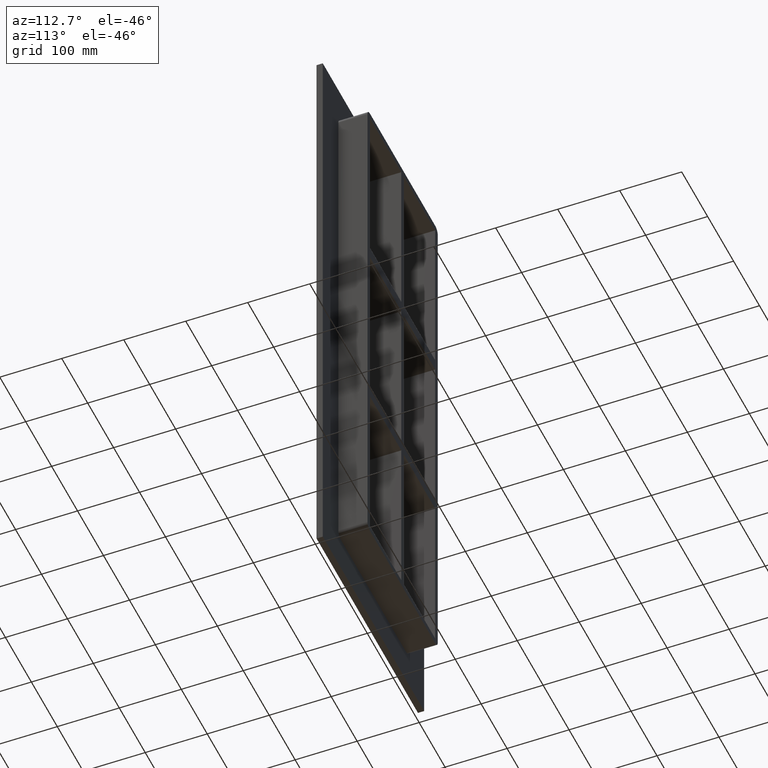
[diagram: clean part render]
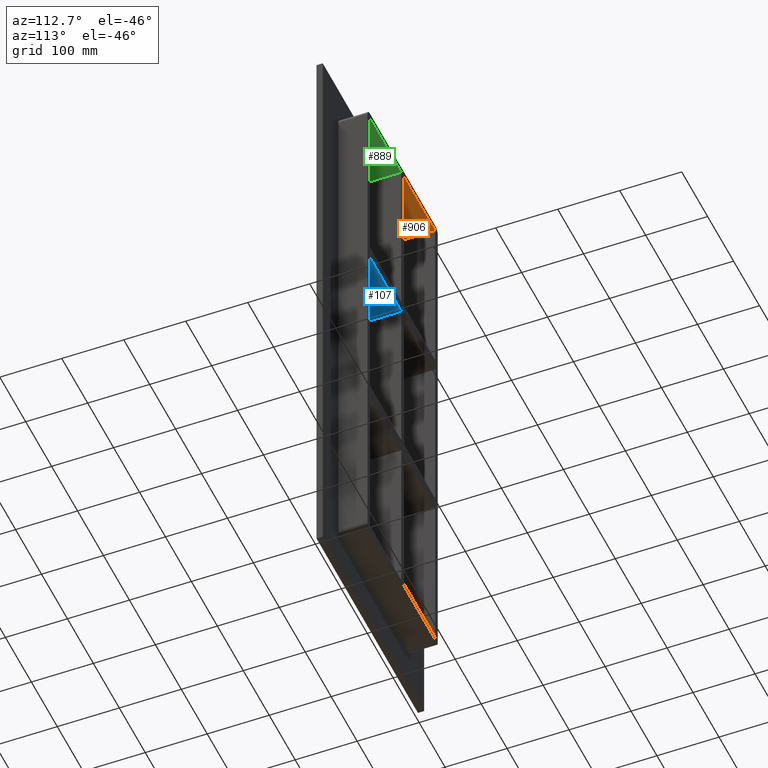
[diagram: same view with three faces highlighted in distinct colors, each labeled with its STEP entity id]
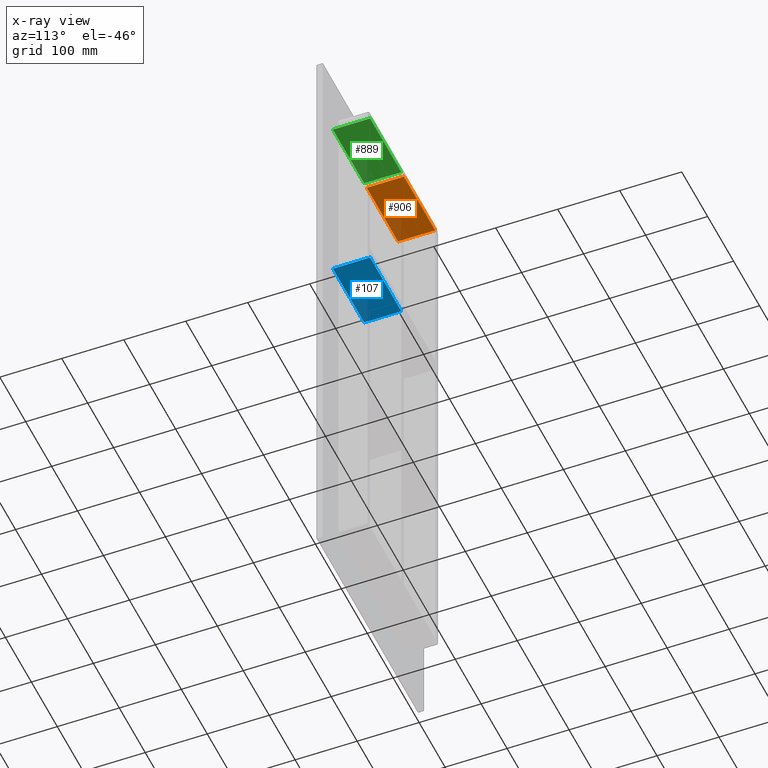
[diagram: x-ray of the same camera — body ghosted, the three highlighted faces saturated]
A machine part, auxiliary view with three faces highlighted in distinct colors.
The next image is the same camera in x-ray (body ghosted, the three faces saturated) — at least one of them is partly hidden behind the body in this view.
Their STEP definitions:

[orange] entity #906 — the highlighted planar face has unit normal (0, 0, 1).
#327=CARTESIAN_POINT('',(-5.000000000001403,-3.0,437.0));
#328=VERTEX_POINT('',#327);
#335=CARTESIAN_POINT('',(-5.000000000001403,57.0,437.0));
#336=VERTEX_POINT('',#335);
#337=CARTESIAN_POINT('',(-5.000000000001403,57.000000000000007,437.0));
#338=DIRECTION('',(0.0,-1.0,0.0));
#339=VECTOR('',#338,60.000000000000007);
#340=LINE('',#337,#339);
#341=EDGE_CURVE('',#336,#328,#340,.T.);
#553=CARTESIAN_POINT('',(-125.5,57.0,437.0));
#554=VERTEX_POINT('',#553);
#561=CARTESIAN_POINT('',(-125.5,-3.0,437.0));
#562=VERTEX_POINT('',#561);
#563=CARTESIAN_POINT('',(-125.5,-3.0,437.0));
#564=DIRECTION('',(0.0,1.0,0.0));
#565=VECTOR('',#564,60.0);
#566=LINE('',#563,#565);
#567=EDGE_CURVE('',#562,#554,#566,.T.);
#714=CARTESIAN_POINT('',(-5.0000000000014,57.0,437.0));
#715=DIRECTION('',(-1.0,0.0,0.0));
#716=VECTOR('',#715,120.49999999999861);
#717=LINE('',#714,#716);
#718=EDGE_CURVE('',#336,#554,#717,.T.);
#890=CARTESIAN_POINT('',(-125.5,0.0,437.0));
#891=DIRECTION('',(0.0,0.0,1.0));
#892=DIRECTION('',(1.0,0.0,0.0));
#893=AXIS2_PLACEMENT_3D('',#890,#891,#892);
#894=PLANE('',#893);
#895=ORIENTED_EDGE('',*,*,#341,.T.);
#896=CARTESIAN_POINT('',(-125.5,-3.0,437.0));
#897=DIRECTION('',(1.0,0.0,0.0));
#898=VECTOR('',#897,120.49999999999861);
#899=LINE('',#896,#898);
#900=EDGE_CURVE('',#562,#328,#899,.T.);
#901=ORIENTED_EDGE('',*,*,#900,.F.);
#902=ORIENTED_EDGE('',*,*,#567,.T.);
#903=ORIENTED_EDGE('',*,*,#718,.F.);
#904=EDGE_LOOP('',(#895,#901,#902,#903));
#905=FACE_OUTER_BOUND('',#904,.T.);
#906=ADVANCED_FACE('',(#905),#894,.F.);

[blue] entity #107 — the highlighted planar face has unit normal (0, 0, -1).
#68=CARTESIAN_POINT('',(125.50000000000182,-3.0,138.99999999999065));
#69=DIRECTION('',(0.0,0.0,-1.0));
#70=DIRECTION('',(-1.0,0.0,0.0));
#71=AXIS2_PLACEMENT_3D('',#68,#69,#70);
#72=PLANE('',#71);
#73=CARTESIAN_POINT('',(5.0,57.0,138.99999999999062));
#74=VERTEX_POINT('',#73);
#75=CARTESIAN_POINT('',(5.0,-3.0,138.99999999999062));
#76=VERTEX_POINT('',#75);
#77=CARTESIAN_POINT('',(5.0,57.0,138.99999999999062));
#78=DIRECTION('',(0.0,-1.0,0.0));
#79=VECTOR('',#78,60.0);
#80=LINE('',#77,#79);
#81=EDGE_CURVE('',#74,#76,#80,.T.);
#82=ORIENTED_EDGE('',*,*,#81,.F.);
#83=CARTESIAN_POINT('',(125.50000000000182,57.0,138.99999999999065));
#84=VERTEX_POINT('',#83);
#85=CARTESIAN_POINT('',(125.50000000000182,57.0,138.99999999999065));
#86=DIRECTION('',(-1.0,0.0,0.0));
#87=VECTOR('',#86,120.50000000000182);
#88=LINE('',#85,#87);
#89=EDGE_CURVE('',#84,#74,#88,.T.);
#90=ORIENTED_EDGE('',*,*,#89,.F.);
#91=CARTESIAN_POINT('',(125.50000000000182,-3.0,138.99999999999065));
#92=VERTEX_POINT('',#91);
#93=CARTESIAN_POINT('',(125.5,-3.0,138.99999999999065));
#94=DIRECTION('',(0.0,1.0,0.0));
#95=VECTOR('',#94,60.000000000000007);
#96=LINE('',#93,#95);
#97=EDGE_CURVE('',#92,#84,#96,.T.);
#98=ORIENTED_EDGE('',*,*,#97,.F.);
#99=CARTESIAN_POINT('',(125.50000000000182,-3.0,138.99999999999065));
#100=DIRECTION('',(-1.0,0.0,0.0));
#101=VECTOR('',#100,120.50000000000182);
#102=LINE('',#99,#101);
#103=EDGE_CURVE('',#92,#76,#102,.T.);
#104=ORIENTED_EDGE('',*,*,#103,.T.);
#105=EDGE_LOOP('',(#82,#90,#98,#104));
#106=FACE_OUTER_BOUND('',#105,.T.);
#107=ADVANCED_FACE('',(#106),#72,.T.);

[green] entity #889 — the highlighted planar face has unit normal (0, 0, 1).
#296=CARTESIAN_POINT('',(125.5,-3.0,437.0));
#297=VERTEX_POINT('',#296);
#304=CARTESIAN_POINT('',(125.5,57.0,437.0));
#305=VERTEX_POINT('',#304);
#306=CARTESIAN_POINT('',(125.5,-3.0,437.0));
#307=DIRECTION('',(0.0,1.0,0.0));
#308=VECTOR('',#307,60.0);
#309=LINE('',#306,#308);
#310=EDGE_CURVE('',#297,#305,#309,.T.);
#389=CARTESIAN_POINT('',(5.0,57.0,437.0));
#390=VERTEX_POINT('',#389);
#397=CARTESIAN_POINT('',(5.0,-3.0,437.0));
#398=VERTEX_POINT('',#397);
#399=CARTESIAN_POINT('',(5.0,-3.0,437.0));
#400=DIRECTION('',(0.0,1.0,0.0));
#401=VECTOR('',#400,60.000000000000007);
#402=LINE('',#399,#401);
#403=EDGE_CURVE('',#398,#390,#402,.T.);
#691=CARTESIAN_POINT('',(125.50000000000003,57.0,437.0));
#692=DIRECTION('',(-1.0,0.0,0.0));
#693=VECTOR('',#692,120.50000000000003);
#694=LINE('',#691,#693);
#695=EDGE_CURVE('',#305,#390,#694,.T.);
#873=CARTESIAN_POINT('',(-125.5,0.0,437.0));
#874=DIRECTION('',(0.0,0.0,1.0));
#875=DIRECTION('',(1.0,0.0,0.0));
#876=AXIS2_PLACEMENT_3D('',#873,#874,#875);
#877=PLANE('',#876);
#878=ORIENTED_EDGE('',*,*,#403,.T.);
#879=ORIENTED_EDGE('',*,*,#695,.F.);
#880=ORIENTED_EDGE('',*,*,#310,.F.);
#881=CARTESIAN_POINT('',(5.0,-3.0,437.0));
#882=DIRECTION('',(1.0,0.0,0.0));
#883=VECTOR('',#882,120.50000000000003);
#884=LINE('',#881,#883);
#885=EDGE_CURVE('',#398,#297,#884,.T.);
#886=ORIENTED_EDGE('',*,*,#885,.F.);
#887=EDGE_LOOP('',(#878,#879,#880,#886));
#888=FACE_OUTER_BOUND('',#887,.T.);
#889=ADVANCED_FACE('',(#888),#877,.F.);